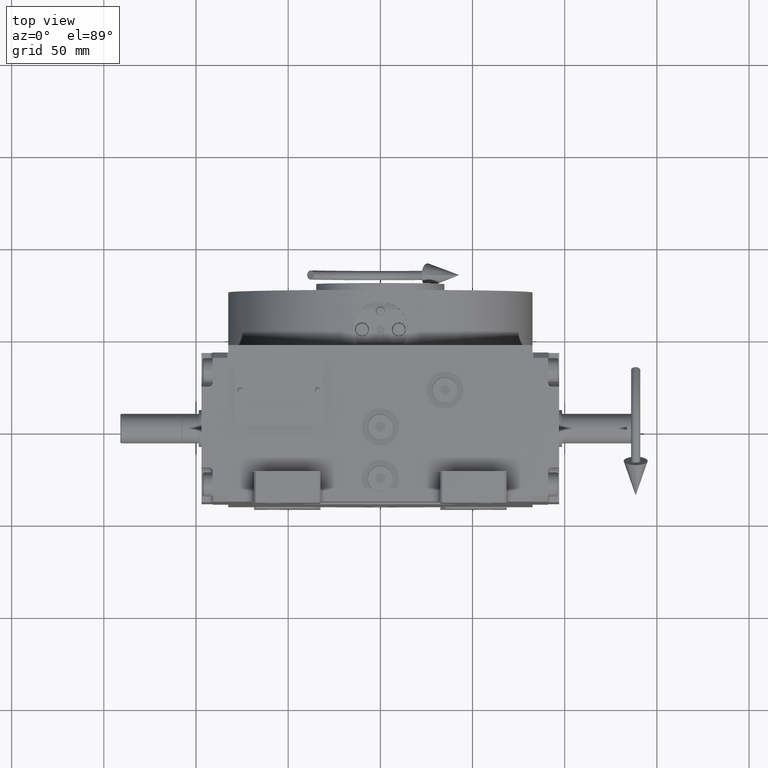
[diagram: clean part render]
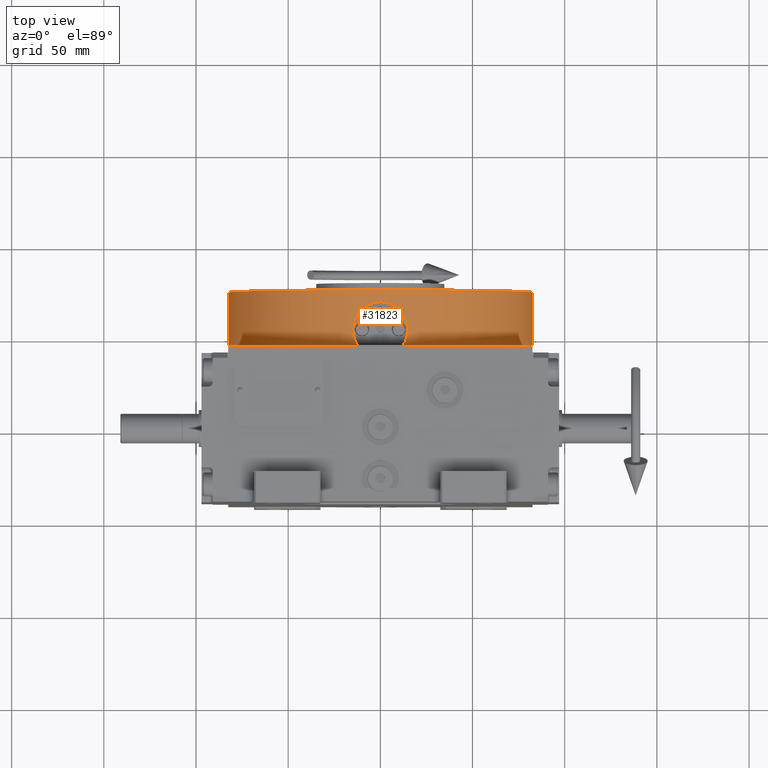
[diagram: same view with one face highlighted and labeled with its STEP entity id]
A machine part, top view. The second image highlights one B-rep face of the part: STEP entity #31823.
In plain terms, the highlighted cylindrical surface (partial cylindrical patch) has radius 82.5 mm, axis along (0, 1, 0).
Its self-contained STEP definition (entity closure, byte-faithful):
#87 = ORIENTED_EDGE ( 'NONE', *, *, #7470, .F. ) ;
#704 = CARTESIAN_POINT ( 'NONE',  ( -4.811342207377684588, -82.36459328412949787, 23.24128728243599440 ) ) ;
#1026 = CARTESIAN_POINT ( 'NONE',  ( -8.729544479475640273, -82.03788872213942795, 21.20816065199864298 ) ) ;
#1044 = CARTESIAN_POINT ( 'NONE',  ( 0.000000000000000000, 0.000000000000000000, 30.49999999999999289 ) ) ;
#1346 = CARTESIAN_POINT ( 'NONE',  ( -10.25790594505797237, -81.86054721232861198, 19.95533894909772954 ) ) ;
#1542 = CARTESIAN_POINT ( 'NONE',  ( 12.00000000000000000, -81.62260716247999426, 0.000000000000000000 ) ) ;
#1665 = CARTESIAN_POINT ( 'NONE',  ( 14.50226475351318811, -81.21548443283947449, 12.86326937730964204 ) ) ;
#1667 = B_SPLINE_CURVE_WITH_KNOTS ( 'NONE', 3,
 ( #29504, #63136, #33739, #34052, #4620, #35006, #60203, #1981, #35324, #21717, #45678, #50182, #56007, #1346, #10440, #25931, #1026, #31441, #54716, #11402, #10759, #704, #15948, #5895, #40188, #25603, #55678, #45996, #45348, #20769, #41476, #26245, #59882, #21087, #50832, #35647, #6863, #60524, #61158, #6213, #30468, #50501, #30148, #51149, #40834, #1665, #15625, #16270, #11729, #21403, #40514, #26565 ),
 .UNSPECIFIED., .F., .F.,
 ( 4, 2, 2, 2, 2, 2, 2, 2, 2, 2, 2, 2, 2, 2, 2, 2, 2, 2, 2, 2, 2, 2, 2, 2, 2, 4 ),
 ( 0.1454211916502409219, 0.1675750447099730867, 0.1897288977697052237, 0.2118827508294373885, 0.2340366038891695255, 0.2783443100086339106, 0.3226520161280983512, 0.3448058691878305160, 0.3669597222475627918, 0.3891135753072950121, 0.4112674283670272324, 0.4555751344864917840, 0.4777289875462240598, 0.4998828406059562801, 0.5220366936656886114, 0.5441905467254208872, 0.5884982528448854389, 0.6328059589643499905, 0.6549598120240823773, 0.6771136650838146531, 0.7214213712032793158, 0.7657290773227439784, 0.7878829303824763652, 0.8100367834422087521, 0.8321906365019411389, 0.8543444895616735257 ),
 .UNSPECIFIED. ) ;
#1981 = CARTESIAN_POINT ( 'NONE',  ( -14.21939720915072236, -81.26548680187907792, 13.80076203430779636 ) ) ;
#2931 = CARTESIAN_POINT ( 'NONE',  ( -14.74242422404743813, -81.17373584456728963, 5.798881419567308626 ) ) ;
#3158 = B_SPLINE_CURVE_WITH_KNOTS ( 'NONE', 3,
 ( #42097, #8456, #42410, #43051, #52096, #12356, #47883, #2931, #23292, #46927 ),
 .UNSPECIFIED., .F., .F.,
 ( 4, 2, 2, 2, 4 ),
 ( 0.000000000000000000, 0.01817764895628013258, 0.03635529791256026516, 0.07271059582512048869, 0.1454211916502409219 ),
 .UNSPECIFIED. ) ;
#4379 = AXIS2_PLACEMENT_3D ( 'NONE', #1044, #22050, #40853 ) ;
#4380 = CARTESIAN_POINT ( 'NONE',  ( 12.24331260194398219, -81.58683580788726886, 0.3244168025936693400 ) ) ;
#4620 = CARTESIAN_POINT ( 'NONE',  ( -14.81001008892855353, -81.15986018706161076, 11.42951172787877923 ) ) ;
#4968 = AXIS2_PLACEMENT_3D ( 'NONE', #13427, #18281, #26769 ) ;
#5205 = ORIENTED_EDGE ( 'NONE', *, *, #31499, .F. ) ;
#5726 = EDGE_LOOP ( 'NONE', ( #39576, #24529, #87, #5205, #40416, #16610, #18827, #60922 ) ) ;
#5895 = CARTESIAN_POINT ( 'NONE',  ( -2.430560769728152604, -82.46558182958291638, 23.80984091961616755 ) ) ;
#6213 = CARTESIAN_POINT ( 'NONE',  ( 11.30536172407987650, -81.72474593102090523, 18.90776664378990901 ) ) ;
#6387 = B_SPLINE_CURVE_WITH_KNOTS ( 'NONE', 3,
 ( #59636, #54469, #58682, #63217, #59314, #34442, #19573, #29887, #4380, #34126 ),
 .UNSPECIFIED., .F., .F.,
 ( 4, 2, 2, 2, 4 ),
 ( 0.8543444895616735257, 0.9271722447808367074, 0.9635861223904182982, 0.9817930611952091491, 1.000000000000000000 ),
 .UNSPECIFIED. ) ;
#6863 = CARTESIAN_POINT ( 'NONE',  ( 9.126528520268772482, -81.99454014431202609, 20.91422892542598788 ) ) ;
#7035 = DIRECTION ( 'NONE',  ( 0.000000000000000000, 0.000000000000000000, 1.000000000000000000 ) ) ;
#7470 = EDGE_CURVE ( 'NONE', #32740, #29840, #38454, .T. ) ;
#8456 = CARTESIAN_POINT ( 'NONE',  ( -12.24319486889437414, -81.58685311677562879, 0.3242598251943211718 ) ) ;
#8729 = DIRECTION ( 'NONE',  ( -1.000000000000000000, 0.000000000000000000, 0.000000000000000000 ) ) ;
#9687 = CARTESIAN_POINT ( 'NONE',  ( -12.00000000000000000, -81.62260716247999426, 0.000000000000000000 ) ) ;
#9904 = CARTESIAN_POINT ( 'NONE',  ( -15.00000155215765929, -81.12491227879678490, 8.999999541712211837 ) ) ;
#10440 = CARTESIAN_POINT ( 'NONE',  ( -9.890504462964388566, -81.90589755126528360, 20.28798289320899073 ) ) ;
#10759 = CARTESIAN_POINT ( 'NONE',  ( -6.170707242067203779, -82.27015669309764689, 22.68071997146563135 ) ) ;
#11402 = CARTESIAN_POINT ( 'NONE',  ( -6.617142359139878138, -82.23535187233964905, 22.47052742801817615 ) ) ;
#11454 = VERTEX_POINT ( 'NONE', #9904 ) ;
#11729 = CARTESIAN_POINT ( 'NONE',  ( 14.88111878486925832, -81.14680913315217481, 10.94694900896201339 ) ) ;
#12356 = CARTESIAN_POINT ( 'NONE',  ( -13.66693360478552854, -81.36097572575444303, 2.765632748514421202 ) ) ;
#13427 = CARTESIAN_POINT ( 'NONE',  ( 0.000000000000000000, 0.000000000000000000, 0.000000000000000000 ) ) ;
#15625 = CARTESIAN_POINT ( 'NONE',  ( 14.62034687227734686, -81.19424092436567264, 12.38900085948214169 ) ) ;
#15948 = CARTESIAN_POINT ( 'NONE',  ( -3.867827837291152537, -82.41486004604385585, 23.52566220404655439 ) ) ;
#16243 = CARTESIAN_POINT ( 'NONE',  ( -82.50000000000001421, 2.020633851199993078E-14, 30.49999999999999289 ) ) ;
#16270 = CARTESIAN_POINT ( 'NONE',  ( 14.81014688631922027, -81.15983520902004500, 11.42877646947460057 ) ) ;
#16610 = ORIENTED_EDGE ( 'NONE', *, *, #43452, .T. ) ;
#16758 = CARTESIAN_POINT ( 'NONE',  ( 82.49999999999998579, -1.010322486831990379E-14, 0.000000000000000000 ) ) ;
#18281 = DIRECTION ( 'NONE',  ( 0.000000000000000000, 0.000000000000000000, 1.000000000000000000 ) ) ;
#18827 = ORIENTED_EDGE ( 'NONE', *, *, #43360, .T. ) ;
#19573 = CARTESIAN_POINT ( 'NONE',  ( 12.90417259304091502, -81.48484508862800624, 1.341936808822923100 ) ) ;
#20769 = CARTESIAN_POINT ( 'NONE',  ( 1.946678680942775408, -82.47845885749219974, 23.88111003742973182 ) ) ;
#21087 = CARTESIAN_POINT ( 'NONE',  ( 6.624688226116246526, -82.23860887313442447, 22.49344792348201594 ) ) ;
#21365 = LINE ( 'NONE', #41115, #33828 ) ;
#21403 = CARTESIAN_POINT ( 'NONE',  ( 14.97604040435058970, -81.12934452212022052, 9.976003562772230993 ) ) ;
#21717 = CARTESIAN_POINT ( 'NONE',  ( -13.49373063831430919, -81.38988350970689112, 15.62419185199609650 ) ) ;
#22050 = DIRECTION ( 'NONE',  ( 0.000000000000000000, 0.000000000000000000, 1.000000000000000000 ) ) ;
#23292 = CARTESIAN_POINT ( 'NONE',  ( -15.00012495507364818, -81.12488059373359306, 7.400251699618396017 ) ) ;
#24217 = VERTEX_POINT ( 'NONE', #29925 ) ;
#24529 = ORIENTED_EDGE ( 'NONE', *, *, #63342, .T. ) ;
#24884 = EDGE_CURVE ( 'NONE', #34733, #39433, #50102, .T. ) ;
#25603 = CARTESIAN_POINT ( 'NONE',  ( -0.9749065849585353272, -82.49566829684266622, 23.97626193698611630 ) ) ;
#25931 = CARTESIAN_POINT ( 'NONE',  ( -9.125874858034199733, -81.99461287356496086, 20.91473132629081633 ) ) ;
#26245 = CARTESIAN_POINT ( 'NONE',  ( 3.868685143425967254, -82.41481977167674700, 23.52543458421588696 ) ) ;
#26565 = CARTESIAN_POINT ( 'NONE',  ( 14.99998170468830949, -81.12496520513606413, 8.999999993001440046 ) ) ;
#26769 = DIRECTION ( 'NONE',  ( 1.000000000000000000, 0.000000000000000000, 0.000000000000000000 ) ) ;
#29504 = CARTESIAN_POINT ( 'NONE',  ( -15.00000155215765929, -81.12491227879678490, 8.999999541712211837 ) ) ;
#29840 = VERTEX_POINT ( 'NONE', #48235 ) ;
#29887 = CARTESIAN_POINT ( 'NONE',  ( 12.47279196628402254, -81.55199022706000278, 0.6576875248769845639 ) ) ;
#29925 = CARTESIAN_POINT ( 'NONE',  ( 82.49999999999998579, -1.010300241903009221E-14, 0.000000000000000000 ) ) ;
#30120 = VERTEX_POINT ( 'NONE', #1542 ) ;
#30148 = CARTESIAN_POINT ( 'NONE',  ( 13.49400507702379315, -81.38983779311415390, 15.62360459987141326 ) ) ;
#30468 = CARTESIAN_POINT ( 'NONE',  ( 11.93547449364186264, -81.63394118524294640, 18.13850242473971264 ) ) ;
#30490 = AXIS2_PLACEMENT_3D ( 'NONE', #37829, #62381, #8729 ) ;
#31441 = CARTESIAN_POINT ( 'NONE',  ( -7.908806210085963073, -82.12107474416406205, 21.75512952174813819 ) ) ;
#31499 = EDGE_CURVE ( 'NONE', #34733, #32740, #21365, .T. ) ;
#31823 = ADVANCED_FACE ( 'NONE', ( #63186 ), #36508, .T. ) ;
#32740 = VERTEX_POINT ( 'NONE', #16243 ) ;
#33739 = CARTESIAN_POINT ( 'NONE',  ( -14.97611104150528405, -81.12933149880575456, 9.976411005623861072 ) ) ;
#33828 = VECTOR ( 'NONE', #60797, 1000.000000000000000 ) ;
#34052 = CARTESIAN_POINT ( 'NONE',  ( -14.88113668230524134, -81.14680586697889453, 10.94705578319436157 ) ) ;
#34126 = CARTESIAN_POINT ( 'NONE',  ( 12.00000000000000000, -81.62260716247999426, 0.000000000000000000 ) ) ;
#34442 = CARTESIAN_POINT ( 'NONE',  ( 13.10652166113867167, -81.45247052056652137, 1.693759511858070832 ) ) ;
#34733 = VERTEX_POINT ( 'NONE', #61999 ) ;
#35006 = CARTESIAN_POINT ( 'NONE',  ( -14.62018483521941903, -81.19427011681041506, 12.38958309517191125 ) ) ;
#35324 = CARTESIAN_POINT ( 'NONE',  ( -14.05465484448405888, -81.29423505555718066, 14.26388389374271348 ) ) ;
#35647 = CARTESIAN_POINT ( 'NONE',  ( 8.730210659104772120, -82.03781768206627589, 21.20768323055676063 ) ) ;
#36508 = CYLINDRICAL_SURFACE ( 'NONE', #4968, 82.50000000000000000 ) ;
#37829 = CARTESIAN_POINT ( 'NONE',  ( 0.000000000000000000, 0.000000000000000000, 0.000000000000000000 ) ) ;
#38454 = CIRCLE ( 'NONE', #4379, 82.50000000000000000 ) ;
#39433 = VERTEX_POINT ( 'NONE', #9687 ) ;
#39576 = ORIENTED_EDGE ( 'NONE', *, *, #45944, .T. ) ;
#40188 = CARTESIAN_POINT ( 'NONE',  ( -1.945796341396865525, -82.47847966099942596, 23.88122612831212166 ) ) ;
#40416 = ORIENTED_EDGE ( 'NONE', *, *, #24884, .T. ) ;
#40514 = CARTESIAN_POINT ( 'NONE',  ( 14.99989816169959411, -81.12492252780923252, 9.486904479132544310 ) ) ;
#40834 = CARTESIAN_POINT ( 'NONE',  ( 14.21962999529760197, -81.26544602374748649, 13.80011905861209520 ) ) ;
#40853 = DIRECTION ( 'NONE',  ( -1.000000000000000000, 0.000000000000000000, 0.000000000000000000 ) ) ;
#41115 = CARTESIAN_POINT ( 'NONE',  ( -82.50000000000001421, 1.010322486831990379E-14, 0.000000000000000000 ) ) ;
#41476 = CARTESIAN_POINT ( 'NONE',  ( 2.431423179542332669, -82.46555639784538982, 23.80969995749037338 ) ) ;
#42097 = CARTESIAN_POINT ( 'NONE',  ( -12.00000000000000000, -81.62260716247999426, 0.000000000000000000 ) ) ;
#42410 = CARTESIAN_POINT ( 'NONE',  ( -12.47259339607201056, -81.55202047700251455, 0.6574111697099772611 ) ) ;
#42827 = EDGE_CURVE ( 'NONE', #61495, #30120, #6387, .T. ) ;
#42907 = DIRECTION ( 'NONE',  ( 0.000000000000000000, 0.000000000000000000, 1.000000000000000000 ) ) ;
#43051 = CARTESIAN_POINT ( 'NONE',  ( -12.90388583830122649, -81.48489037961125803, 1.341496897383961162 ) ) ;
#43360 = EDGE_CURVE ( 'NONE', #11454, #61495, #1667, .T. ) ;
#43452 = EDGE_CURVE ( 'NONE', #39433, #11454, #3158, .T. ) ;
#44711 = CIRCLE ( 'NONE', #57062, 82.50000000000001421 ) ;
#45348 = CARTESIAN_POINT ( 'NONE',  ( 0.9757833380981876248, -82.49565794798510865, 23.97620529776547116 ) ) ;
#45678 = CARTESIAN_POINT ( 'NONE',  ( -13.02860497951152574, -81.46662816327996381, 16.49865198838897484 ) ) ;
#45944 = EDGE_CURVE ( 'NONE', #30120, #24217, #44711, .T. ) ;
#45996 = CARTESIAN_POINT ( 'NONE',  ( 0.4888429166140731419, -82.49999735124053757, 23.99998603411285103 ) ) ;
#46927 = CARTESIAN_POINT ( 'NONE',  ( -15.00000155215765929, -81.12491227879678490, 8.999999541712211837 ) ) ;
#47883 = CARTESIAN_POINT ( 'NONE',  ( -13.98260586172614417, -81.30684380208695927, 3.511029366357954373 ) ) ;
#48235 = CARTESIAN_POINT ( 'NONE',  ( 82.49999999999998579, -1.010300241903009221E-14, 30.49999999999999289 ) ) ;
#49009 = DIRECTION ( 'NONE',  ( 0.1454545454545079775, -0.9893649353027538229, 0.000000000000000000 ) ) ;
#50102 = CIRCLE ( 'NONE', #30490, 82.50000000000000000 ) ;
#50182 = CARTESIAN_POINT ( 'NONE',  ( -11.93490206567074807, -81.63402577779145020, 18.13927526272372148 ) ) ;
#50501 = CARTESIAN_POINT ( 'NONE',  ( 13.02891348785843917, -81.46657792094852368, 16.49810643378964770 ) ) ;
#50832 = CARTESIAN_POINT ( 'NONE',  ( 7.499193382787055384, -82.16259812932356965, 22.02817527205979431 ) ) ;
#50999 = LINE ( 'NONE', #16758, #63316 ) ;
#51149 = CARTESIAN_POINT ( 'NONE',  ( 14.05486030038500900, -81.29419948058227874, 14.26331805387535923 ) ) ;
#52096 = CARTESIAN_POINT ( 'NONE',  ( -13.10624451707161064, -81.45251509904302623, 1.693301029072924457 ) ) ;
#52398 = CARTESIAN_POINT ( 'NONE',  ( 14.99998170468830949, -81.12496520513606413, 8.999999993001440046 ) ) ;
#54469 = CARTESIAN_POINT ( 'NONE',  ( 15.00017790217110836, -81.12487080390822314, 7.399368257337098242 ) ) ;
#54716 = CARTESIAN_POINT ( 'NONE',  ( -7.484978948461018078, -82.16090774029784427, 22.00829641613369247 ) ) ;
#55678 = CARTESIAN_POINT ( 'NONE',  ( -0.4879484670812267999, -82.50000264633506220, 24.00001391814626928 ) ) ;
#56007 = CARTESIAN_POINT ( 'NONE',  ( -11.30480490646017699, -81.72482293125531783, 18.90840080558208314 ) ) ;
#57062 = AXIS2_PLACEMENT_3D ( 'NONE', #58707, #42907, #49009 ) ;
#58682 = CARTESIAN_POINT ( 'NONE',  ( 14.74248490922440880, -81.17372402366743245, 5.799389260054983453 ) ) ;
#58707 = CARTESIAN_POINT ( 'NONE',  ( 0.000000000000000000, 0.000000000000000000, 0.000000000000000000 ) ) ;
#59314 = CARTESIAN_POINT ( 'NONE',  ( 13.66723119669916819, -81.36092580131199270, 2.766280334785800044 ) ) ;
#59636 = CARTESIAN_POINT ( 'NONE',  ( 14.99998170468830949, -81.12496520513606413, 8.999999993001440046 ) ) ;
#59882 = CARTESIAN_POINT ( 'NONE',  ( 4.812155808953960445, -82.36454601314801494, 23.24101326873693196 ) ) ;
#60203 = CARTESIAN_POINT ( 'NONE',  ( -14.50208352788519228, -81.21551683938376698, 12.86383315645771575 ) ) ;
#60524 = CARTESIAN_POINT ( 'NONE',  ( 9.891167989166826047, -81.90581744979145640, 20.28740639923825739 ) ) ;
#60797 = DIRECTION ( 'NONE',  ( 0.000000000000000000, 0.000000000000000000, 1.000000000000000000 ) ) ;
#60922 = ORIENTED_EDGE ( 'NONE', *, *, #42827, .T. ) ;
#61158 = CARTESIAN_POINT ( 'NONE',  ( 10.25845936648661372, -81.86047786769078982, 19.95481955293025678 ) ) ;
#61495 = VERTEX_POINT ( 'NONE', #52398 ) ;
#61999 = CARTESIAN_POINT ( 'NONE',  ( -82.50000000000001421, 2.020633851199993078E-14, 0.000000000000000000 ) ) ;
#62381 = DIRECTION ( 'NONE',  ( 0.000000000000000000, 0.000000000000000000, 1.000000000000000000 ) ) ;
#63136 = CARTESIAN_POINT ( 'NONE',  ( -14.99996597817484556, -81.12490998857889224, 9.487419267298863090 ) ) ;
#63186 = FACE_OUTER_BOUND ( 'NONE', #5726, .T. ) ;
#63217 = CARTESIAN_POINT ( 'NONE',  ( 13.98285332921872559, -81.30680104435214162, 3.511842341530857947 ) ) ;
#63316 = VECTOR ( 'NONE', #7035, 1000.000000000000000 ) ;
#63342 = EDGE_CURVE ( 'NONE', #24217, #29840, #50999, .T. ) ;